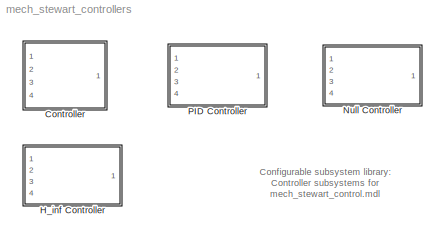
MODEL mech_stewart_controllers
KIND library
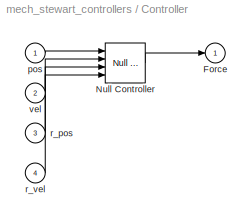
BLOCK [SubSystem] Controller 
  BlockChoice = Null Controller
  MemberBlocks = H_inf Controller,Null Controller,PID Controller
  MinAlgLoopOccurrences = off
  Ports = [4, 1]
  RTWSystemCode = Auto
  TemplateBlock = self
  TreatAsAtomicUnit = off
BLOCK [Outport] Controller /Force
  IconDisplay = Port number
BLOCK [Reference] Controller /Null Controller  REF=mech_stewart_controllers/Null Controller  (lib defined in mdl_599bb43ff82a, mdl_9159fbd9fc75)
  Ports = [4, 1]
  ShowPortLabels = on
  SourceBlock = mech_stewart_controllers/Null Controller
BLOCK [Inport] Controller /pos
  IconDisplay = Port number
  LatchInput = off
  Port = 1
BLOCK [Inport] Controller /r_pos
  IconDisplay = Port number
  LatchInput = off
  Port = 3
BLOCK [Inport] Controller /r_vel
  IconDisplay = Port number
  LatchInput = off
  Port = 4
BLOCK [Inport] Controller /vel
  IconDisplay = Port number
  LatchInput = off
  Port = 2
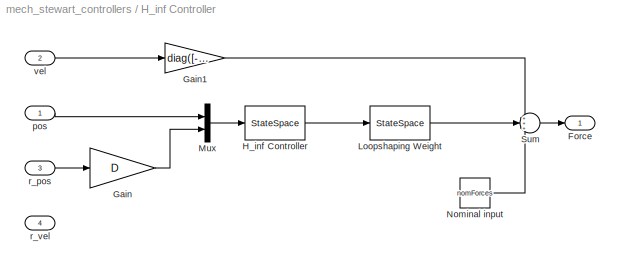
BLOCK [SubSystem] H_inf Controller
  MinAlgLoopOccurrences = off
  Ports = [4, 1]
  RTWSystemCode = Auto
  TreatAsAtomicUnit = off
BLOCK [Outport] H_inf Controller/Force
  IconDisplay = Port number
BLOCK [Gain] H_inf Controller/Gain
  Gain = D
  Multiplication = Matrix(K*u)
BLOCK [Gain] H_inf Controller/Gain1
  Gain = diag([-Kd,-Kd,-Kd,-Kd,-Kd,-Kd])
  Multiplication = Matrix(K*u)
BLOCK [StateSpace] H_inf Controller/H_inf Controller
  A = Ak
  B = Bk
  C = Ck
  D = Dk
BLOCK [StateSpace] H_inf Controller/Loopshaping Weight
  A = Aw
  B = Bw
  C = Cw
  D = Dw
BLOCK [Mux] H_inf Controller/Mux
  DisplayOption = bar
  Inputs = 2
  Ports = [2, 1]
BLOCK [Constant] H_inf Controller/Nominal input
  Value = nomForces
BLOCK [Sum] H_inf Controller/Sum
  IconShape = round
  Inputs = +++
  Ports = [3, 1]
BLOCK [Inport] H_inf Controller/pos
  IconDisplay = Port number
  LatchInput = off
  Port = 1
BLOCK [Inport] H_inf Controller/r_pos
  IconDisplay = Port number
  LatchInput = off
  Port = 3
BLOCK [Inport] H_inf Controller/r_vel
  IconDisplay = Port number
  LatchInput = off
  Port = 4
BLOCK [Inport] H_inf Controller/vel
  IconDisplay = Port number
  LatchInput = off
  Port = 2
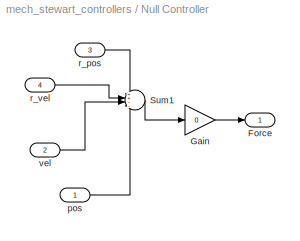
BLOCK [SubSystem] Null Controller
  MaskIconFrame = on
  MaskIconOpaque = on
  MaskIconRotate = none
  MaskIconUnits = autoscale
  MinAlgLoopOccurrences = off
  Ports = [4, 1]
  RTWSystemCode = Auto
  TreatAsAtomicUnit = off
BLOCK [Outport] Null Controller/Force
  IconDisplay = Port number
BLOCK [Gain] Null Controller/Gain
  Gain = 0
  OutDataTypeMode = Inherit via internal rule
  ParameterDataTypeMode = Inherit via internal rule
  SaturateOnIntegerOverflow = off
BLOCK [Sum] Null Controller/Sum1
  IconShape = round
  Inputs = ++--
  Ports = [4, 1]
BLOCK [Inport] Null Controller/pos
  IconDisplay = Port number
  LatchInput = off
  Port = 1
BLOCK [Inport] Null Controller/r_pos
  IconDisplay = Port number
  LatchInput = off
  Port = 3
BLOCK [Inport] Null Controller/r_vel
  IconDisplay = Port number
  LatchInput = off
  Port = 4
BLOCK [Inport] Null Controller/vel
  IconDisplay = Port number
  LatchInput = off
  Port = 2
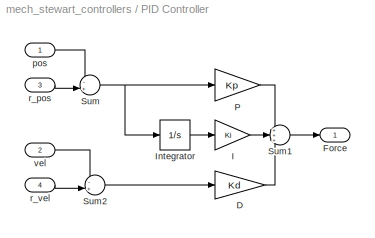
BLOCK [SubSystem] PID Controller
  MaskIconFrame = on
  MaskIconOpaque = on
  MaskIconRotate = none
  MaskIconUnits = autoscale
  MinAlgLoopOccurrences = off
  Ports = [4, 1]
  RTWSystemCode = Auto
  TreatAsAtomicUnit = off
BLOCK [Gain] PID Controller/   I
  Gain = Ki
BLOCK [Gain] PID Controller/D
  Gain = Kd
BLOCK [Outport] PID Controller/Force
  IconDisplay = Port number
BLOCK [Integrator] PID Controller/Integrator
  InitialCondition = (upper_leg_mass+lower_leg_mass+(top_mass*1.3/6))*9.81/Ki
  Ports = [1, 1]
  ZeroCross = off
BLOCK [Gain] PID Controller/P
  Gain = Kp
BLOCK [Sum] PID Controller/Sum
  IconShape = round
  Inputs = -+|
  Ports = [2, 1]
BLOCK [Sum] PID Controller/Sum1
  IconShape = round
  Inputs = +++
  Ports = [3, 1]
BLOCK [Sum] PID Controller/Sum2
  IconShape = round
  Inputs = -+|
  Ports = [2, 1]
BLOCK [Inport] PID Controller/pos
  IconDisplay = Port number
  LatchInput = off
  Port = 1
BLOCK [Inport] PID Controller/r_pos
  IconDisplay = Port number
  LatchInput = off
  Port = 3
BLOCK [Inport] PID Controller/r_vel
  IconDisplay = Port number
  LatchInput = off
  Port = 4
BLOCK [Inport] PID Controller/vel
  IconDisplay = Port number
  LatchInput = off
  Port = 2
ANNOTATION (root): Configurable subsystem library:\nController subsystems for\nmech_stewart_control.mdl
LINE Controller /Null Controller:1 -> Controller /Force:1
LINE Controller /pos:1 -> Controller /Null Controller:1
LINE Controller /r_pos:1 -> Controller /Null Controller:3
LINE Controller /r_vel:1 -> Controller /Null Controller:4
LINE Controller /vel:1 -> Controller /Null Controller:2
LINE H_inf Controller/Gain1:1 -> H_inf Controller/Sum:1
LINE H_inf Controller/Gain:1 -> H_inf Controller/Mux:2
LINE H_inf Controller/H_inf Controller:1 -> H_inf Controller/Loopshaping Weight:1
LINE H_inf Controller/Loopshaping Weight:1 -> H_inf Controller/Sum:2
LINE H_inf Controller/Mux:1 -> H_inf Controller/H_inf Controller:1
LINE H_inf Controller/Nominal input:1 -> H_inf Controller/Sum:3
LINE H_inf Controller/Sum:1 -> H_inf Controller/Force:1
LINE H_inf Controller/pos:1 -> H_inf Controller/Mux:1
LINE H_inf Controller/r_pos:1 -> H_inf Controller/Gain:1
LINE H_inf Controller/vel:1 -> H_inf Controller/Gain1:1
LINE Null Controller/Gain:1 -> Null Controller/Force:1
LINE Null Controller/Sum1:1 -> Null Controller/Gain:1
LINE Null Controller/pos:1 -> Null Controller/Sum1:4
LINE Null Controller/r_pos:1 -> Null Controller/Sum1:1
LINE Null Controller/r_vel:1 -> Null Controller/Sum1:2
LINE Null Controller/vel:1 -> Null Controller/Sum1:3
LINE PID Controller/   I:1 -> PID Controller/Sum1:2
LINE PID Controller/D:1 -> PID Controller/Sum1:3
LINE PID Controller/Integrator:1 -> PID Controller/   I:1
LINE PID Controller/P:1 -> PID Controller/Sum1:1
LINE PID Controller/Sum1:1 -> PID Controller/Force:1
LINE PID Controller/Sum2:1 -> PID Controller/D:1
NET PID Controller/Sum:1 -> PID Controller/Integrator:1, PID Controller/P:1
LINE PID Controller/pos:1 -> PID Controller/Sum:1
LINE PID Controller/r_pos:1 -> PID Controller/Sum:2
LINE PID Controller/r_vel:1 -> PID Controller/Sum2:2
LINE PID Controller/vel:1 -> PID Controller/Sum2:1
note: NET lines group one-source signal fan-out (src -> all destinations, sorted); 1:1 wires keep LINE
